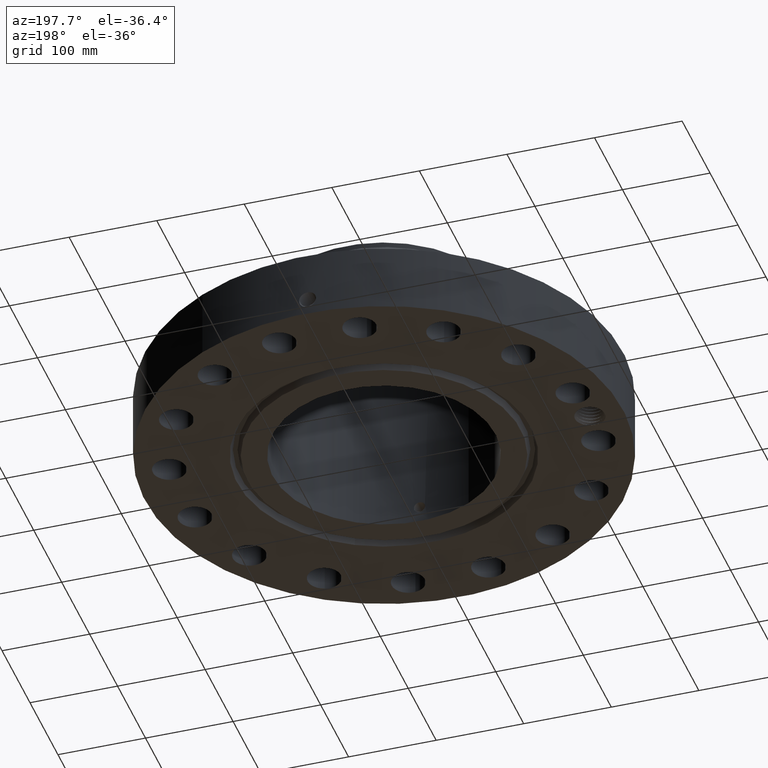
[diagram: clean part render]
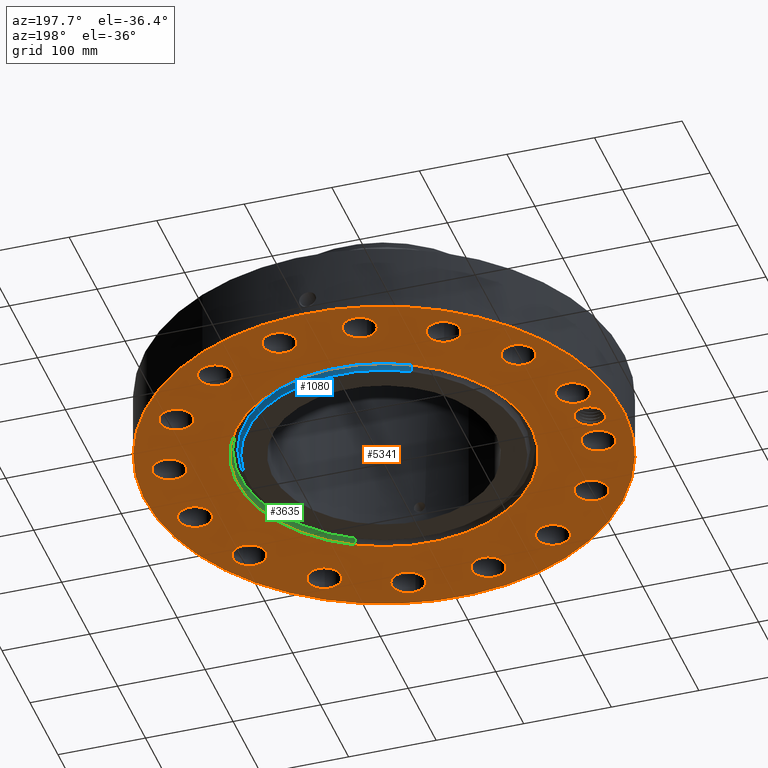
[diagram: same view with three faces highlighted in distinct colors, each labeled with its STEP entity id]
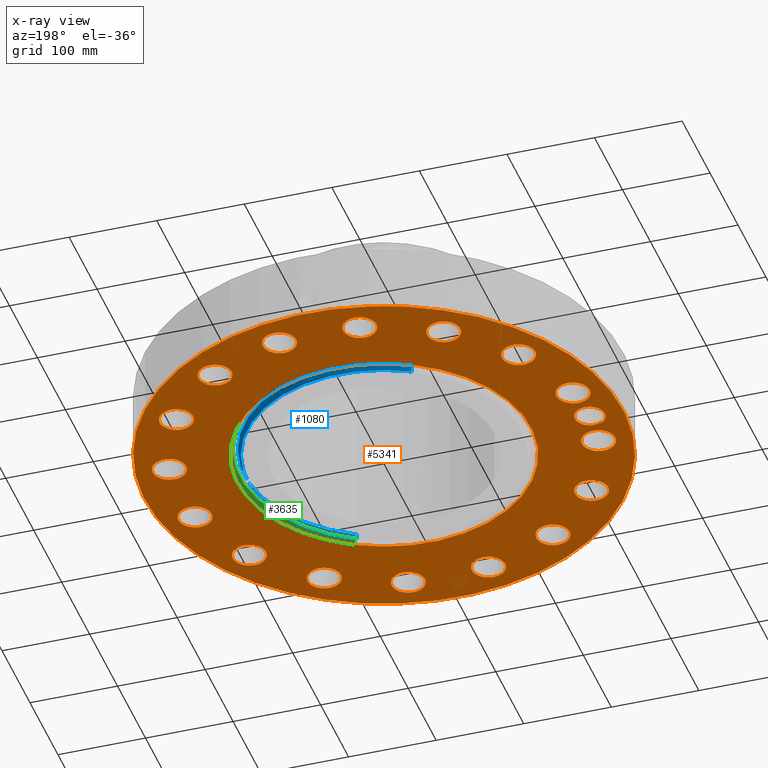
[diagram: x-ray of the same camera — body ghosted, the three highlighted faces saturated]
A machine part, auxiliary view with three faces highlighted in distinct colors.
The next image is the same camera in x-ray (body ghosted, the three faces saturated) — at least one of them is partly hidden behind the body in this view.
Their STEP definitions:

[orange] entity #5341 — the highlighted planar face has unit normal (0, 0, -1).
#598=AXIS2_PLACEMENT_3D('Plane Axis2P3D',#595,#596,#597) ;
#3612=AXIS2_PLACEMENT_3D('Circle Axis2P3D',#3610,#3611,$) ;
#3638=AXIS2_PLACEMENT_3D('Circle Axis2P3D',#3636,#3637,$) ;
#3911=AXIS2_PLACEMENT_3D('Circle Axis2P3D',#3909,#3910,$) ;
#4024=AXIS2_PLACEMENT_3D('Circle Axis2P3D',#4022,#4023,$) ;
#4246=AXIS2_PLACEMENT_3D('Circle Axis2P3D',#4244,#4245,$) ;
#4265=AXIS2_PLACEMENT_3D('Circle Axis2P3D',#4263,#4264,$) ;
#4289=AXIS2_PLACEMENT_3D('Circle Axis2P3D',#4287,#4288,$) ;
#4308=AXIS2_PLACEMENT_3D('Circle Axis2P3D',#4306,#4307,$) ;
#4332=AXIS2_PLACEMENT_3D('Circle Axis2P3D',#4330,#4331,$) ;
#4351=AXIS2_PLACEMENT_3D('Circle Axis2P3D',#4349,#4350,$) ;
#4375=AXIS2_PLACEMENT_3D('Circle Axis2P3D',#4373,#4374,$) ;
#4394=AXIS2_PLACEMENT_3D('Circle Axis2P3D',#4392,#4393,$) ;
#4418=AXIS2_PLACEMENT_3D('Circle Axis2P3D',#4416,#4417,$) ;
#4437=AXIS2_PLACEMENT_3D('Circle Axis2P3D',#4435,#4436,$) ;
#4461=AXIS2_PLACEMENT_3D('Circle Axis2P3D',#4459,#4460,$) ;
#4480=AXIS2_PLACEMENT_3D('Circle Axis2P3D',#4478,#4479,$) ;
#4504=AXIS2_PLACEMENT_3D('Circle Axis2P3D',#4502,#4503,$) ;
#4523=AXIS2_PLACEMENT_3D('Circle Axis2P3D',#4521,#4522,$) ;
#4547=AXIS2_PLACEMENT_3D('Circle Axis2P3D',#4545,#4546,$) ;
#4566=AXIS2_PLACEMENT_3D('Circle Axis2P3D',#4564,#4565,$) ;
#4590=AXIS2_PLACEMENT_3D('Circle Axis2P3D',#4588,#4589,$) ;
#4609=AXIS2_PLACEMENT_3D('Circle Axis2P3D',#4607,#4608,$) ;
#4633=AXIS2_PLACEMENT_3D('Circle Axis2P3D',#4631,#4632,$) ;
#4652=AXIS2_PLACEMENT_3D('Circle Axis2P3D',#4650,#4651,$) ;
#4676=AXIS2_PLACEMENT_3D('Circle Axis2P3D',#4674,#4675,$) ;
#4695=AXIS2_PLACEMENT_3D('Circle Axis2P3D',#4693,#4694,$) ;
#4719=AXIS2_PLACEMENT_3D('Circle Axis2P3D',#4717,#4718,$) ;
#4738=AXIS2_PLACEMENT_3D('Circle Axis2P3D',#4736,#4737,$) ;
#4762=AXIS2_PLACEMENT_3D('Circle Axis2P3D',#4760,#4761,$) ;
#4781=AXIS2_PLACEMENT_3D('Circle Axis2P3D',#4779,#4780,$) ;
#4805=AXIS2_PLACEMENT_3D('Circle Axis2P3D',#4803,#4804,$) ;
#4824=AXIS2_PLACEMENT_3D('Circle Axis2P3D',#4822,#4823,$) ;
#4848=AXIS2_PLACEMENT_3D('Circle Axis2P3D',#4846,#4847,$) ;
#4867=AXIS2_PLACEMENT_3D('Circle Axis2P3D',#4865,#4866,$) ;
#4891=AXIS2_PLACEMENT_3D('Circle Axis2P3D',#4889,#4890,$) ;
#4910=AXIS2_PLACEMENT_3D('Circle Axis2P3D',#4908,#4909,$) ;
#5221=AXIS2_PLACEMENT_3D('Circle Axis2P3D',#5219,#5220,$) ;
#5230=AXIS2_PLACEMENT_3D('Circle Axis2P3D',#5228,#5229,$) ;
#5237=AXIS2_PLACEMENT_3D('Circle Axis2P3D',#5235,#5236,$) ;
#595=CARTESIAN_POINT('Axis2P3D Location',(0.,5.01000000002,0.)) ;
#3610=CARTESIAN_POINT('Axis2P3D Location',(0.,0.,-3.49676543189E-017)) ;
#3614=CARTESIAN_POINT('Vertex',(-3.16876309742,5.80038194284,-3.49676543189E-017)) ;
#3616=CARTESIAN_POINT('Vertex',(3.16876309742,-5.80038194284,-3.49676543189E-017)) ;
#3636=CARTESIAN_POINT('Axis2P3D Location',(0.,0.,-3.49676543189E-017)) ;
#3909=CARTESIAN_POINT('Axis2P3D Location',(0.,0.,1.1189649382E-015)) ;
#3913=CARTESIAN_POINT('Vertex',(-5.15382454002,-9.43401254036,1.1189649382E-015)) ;
#3915=CARTESIAN_POINT('Vertex',(5.15382454002,9.43401254036,1.1189649382E-015)) ;
#4022=CARTESIAN_POINT('Axis2P3D Location',(0.,0.,1.1189649382E-015)) ;
#4241=CARTESIAN_POINT('Vertex',(9.73045076519,-2.16415463261,0.)) ;
#4244=CARTESIAN_POINT('Axis2P3D Location',(9.07226384377,-1.80458547866,0.)) ;
#4248=CARTESIAN_POINT('Vertex',(8.41407692235,-1.4450163247,0.)) ;
#4263=CARTESIAN_POINT('Axis2P3D Location',(9.07226384377,-1.80458547866,0.)) ;
#4284=CARTESIAN_POINT('Vertex',(7.22060964657,-4.55494884336,0.)) ;
#4287=CARTESIAN_POINT('Axis2P3D Location',(7.69109391383,-5.13902465545,0.)) ;
#4291=CARTESIAN_POINT('Vertex',(8.16157818109,-5.72310046754,0.)) ;
#4306=CARTESIAN_POINT('Axis2P3D Location',(7.69109391383,-5.13902465545,0.)) ;
#4327=CARTESIAN_POINT('Vertex',(4.92787000709,-6.97143169134,0.)) ;
#4330=CARTESIAN_POINT('Axis2P3D Location',(5.13902465545,-7.69109391383,0.)) ;
#4334=CARTESIAN_POINT('Vertex',(5.35017930381,-8.41075613632,0.)) ;
#4349=CARTESIAN_POINT('Axis2P3D Location',(5.13902465545,-7.69109391383,0.)) ;
#4370=CARTESIAN_POINT('Vertex',(1.88490683029,-8.32657726049,0.)) ;
#4373=CARTESIAN_POINT('Axis2P3D Location',(1.80458547866,-9.07226384377,0.)) ;
#4377=CARTESIAN_POINT('Vertex',(1.72426412702,-9.81795042704,0.)) ;
#4392=CARTESIAN_POINT('Axis2P3D Location',(1.80458547866,-9.07226384377,0.)) ;
#4413=CARTESIAN_POINT('Vertex',(-1.4450163247,-8.41407692235,0.)) ;
#4416=CARTESIAN_POINT('Axis2P3D Location',(-1.80458547866,-9.07226384377,0.)) ;
#4420=CARTESIAN_POINT('Vertex',(-2.16415463261,-9.73045076519,0.)) ;
#4435=CARTESIAN_POINT('Axis2P3D Location',(-1.80458547866,-9.07226384377,0.)) ;
#4456=CARTESIAN_POINT('Vertex',(-4.55494884336,-7.22060964657,0.)) ;
#4459=CARTESIAN_POINT('Axis2P3D Location',(-5.13902465545,-7.69109391383,0.)) ;
#4463=CARTESIAN_POINT('Vertex',(-5.72310046754,-8.16157818109,0.)) ;
#4478=CARTESIAN_POINT('Axis2P3D Location',(-5.13902465545,-7.69109391383,0.)) ;
#4499=CARTESIAN_POINT('Vertex',(-6.97143169134,-4.92787000709,0.)) ;
#4502=CARTESIAN_POINT('Axis2P3D Location',(-7.69109391383,-5.13902465545,0.)) ;
#4506=CARTESIAN_POINT('Vertex',(-8.41075613632,-5.35017930381,0.)) ;
#4521=CARTESIAN_POINT('Axis2P3D Location',(-7.69109391383,-5.13902465545,0.)) ;
#4542=CARTESIAN_POINT('Vertex',(-8.32657726049,-1.88490683029,0.)) ;
#4545=CARTESIAN_POINT('Axis2P3D Location',(-9.07226384377,-1.80458547866,0.)) ;
#4549=CARTESIAN_POINT('Vertex',(-9.81795042704,-1.72426412702,0.)) ;
#4564=CARTESIAN_POINT('Axis2P3D Location',(-9.07226384377,-1.80458547866,0.)) ;
#4585=CARTESIAN_POINT('Vertex',(-8.41407692235,1.4450163247,0.)) ;
#4588=CARTESIAN_POINT('Axis2P3D Location',(-9.07226384377,1.80458547866,0.)) ;
#4592=CARTESIAN_POINT('Vertex',(-9.73045076519,2.16415463261,0.)) ;
#4607=CARTESIAN_POINT('Axis2P3D Location',(-9.07226384377,1.80458547866,0.)) ;
#4628=CARTESIAN_POINT('Vertex',(-7.22060964657,4.55494884336,0.)) ;
#4631=CARTESIAN_POINT('Axis2P3D Location',(-7.69109391383,5.13902465545,0.)) ;
#4635=CARTESIAN_POINT('Vertex',(-8.16157818109,5.72310046754,0.)) ;
#4650=CARTESIAN_POINT('Axis2P3D Location',(-7.69109391383,5.13902465545,0.)) ;
#4671=CARTESIAN_POINT('Vertex',(-4.92787000709,6.97143169134,0.)) ;
#4674=CARTESIAN_POINT('Axis2P3D Location',(-5.13902465545,7.69109391383,0.)) ;
#4678=CARTESIAN_POINT('Vertex',(-5.35017930381,8.41075613632,0.)) ;
#4693=CARTESIAN_POINT('Axis2P3D Location',(-5.13902465545,7.69109391383,0.)) ;
#4714=CARTESIAN_POINT('Vertex',(-1.88490683029,8.32657726049,0.)) ;
#4717=CARTESIAN_POINT('Axis2P3D Location',(-1.80458547866,9.07226384377,0.)) ;
#4721=CARTESIAN_POINT('Vertex',(-1.72426412702,9.81795042704,0.)) ;
#4736=CARTESIAN_POINT('Axis2P3D Location',(-1.80458547866,9.07226384377,0.)) ;
#4757=CARTESIAN_POINT('Vertex',(1.4450163247,8.41407692235,0.)) ;
#4760=CARTESIAN_POINT('Axis2P3D Location',(1.80458547866,9.07226384377,0.)) ;
#4764=CARTESIAN_POINT('Vertex',(2.16415463261,9.73045076519,0.)) ;
#4779=CARTESIAN_POINT('Axis2P3D Location',(1.80458547866,9.07226384377,0.)) ;
#4800=CARTESIAN_POINT('Vertex',(4.55494884336,7.22060964657,0.)) ;
#4803=CARTESIAN_POINT('Axis2P3D Location',(5.13902465545,7.69109391383,-2.23792987641E-015)) ;
#4807=CARTESIAN_POINT('Vertex',(5.72310046754,8.16157818109,-2.23792987641E-015)) ;
#4822=CARTESIAN_POINT('Axis2P3D Location',(5.13902465545,7.69109391383,-2.23792987641E-015)) ;
#4843=CARTESIAN_POINT('Vertex',(6.97143169134,4.92787000709,0.)) ;
#4846=CARTESIAN_POINT('Axis2P3D Location',(7.69109391383,5.13902465545,0.)) ;
#4850=CARTESIAN_POINT('Vertex',(8.41075613632,5.35017930381,0.)) ;
#4865=CARTESIAN_POINT('Axis2P3D Location',(7.69109391383,5.13902465545,0.)) ;
#4886=CARTESIAN_POINT('Vertex',(8.32657726049,1.88490683029,0.)) ;
#4889=CARTESIAN_POINT('Axis2P3D Location',(9.07226384377,1.80458547866,0.)) ;
#4893=CARTESIAN_POINT('Vertex',(9.81795042704,1.72426412702,0.)) ;
#4908=CARTESIAN_POINT('Axis2P3D Location',(9.07226384377,1.80458547866,0.)) ;
#5219=CARTESIAN_POINT('Axis2P3D Location',(-9.25000000004,2.23792987641E-015,0.)) ;
#5223=CARTESIAN_POINT('Vertex',(-8.66254623311,-0.320927455543,0.)) ;
#5225=CARTESIAN_POINT('Vertex',(-9.26642118393,-0.669198554035,0.)) ;
#5228=CARTESIAN_POINT('Axis2P3D Location',(-9.25000000004,2.23792987641E-015,0.)) ;
#5232=CARTESIAN_POINT('Vertex',(-9.83745376697,0.320927455543,0.)) ;
#5235=CARTESIAN_POINT('Axis2P3D Location',(-9.25000000004,2.23792987641E-015,0.)) ;
#5239=CARTESIAN_POINT('Vertex',(-9.91544654649,-0.0726447094977,0.)) ;
#5243=CARTESIAN_POINT('Control Point',(-9.71532845178,-0.506089292891,0.)) ;
#5244=CARTESIAN_POINT('Control Point',(-9.76120298516,-0.460699456486,0.)) ;
#5245=CARTESIAN_POINT('Control Point',(-9.80165111393,-0.410019209044,0.)) ;
#5246=CARTESIAN_POINT('Control Point',(-9.83584809507,-0.354891065902,0.)) ;
#5247=CARTESIAN_POINT('Control Point',(-9.87739984907,-0.265853909544,0.)) ;
#5248=CARTESIAN_POINT('Control Point',(-9.9021867324,-0.171593047047,0.)) ;
#5249=CARTESIAN_POINT('Control Point',(-9.90866145955,-0.138835763008,0.)) ;
#5250=CARTESIAN_POINT('Control Point',(-9.91308465444,-0.105795730288,0.)) ;
#5251=CARTESIAN_POINT('Control Point',(-9.91544654649,-0.0726447094977,0.)) ;
#5252=CARTESIAN_POINT('Vertex',(-9.71532845178,-0.506089292889,-8.74191357973E-018)) ;
#5256=CARTESIAN_POINT('Control Point',(-9.71532845178,-0.506089292889,0.)) ;
#5257=CARTESIAN_POINT('Control Point',(-9.67443972998,-0.541010292444,0.)) ;
#5258=CARTESIAN_POINT('Control Point',(-9.63020005154,-0.571875084658,0.)) ;
#5259=CARTESIAN_POINT('Control Point',(-9.58313421186,-0.598245643618,0.)) ;
#5260=CARTESIAN_POINT('Control Point',(-9.49312921004,-0.637586114101,0.)) ;
#5261=CARTESIAN_POINT('Control Point',(-9.39799099447,-0.660111324278,0.)) ;
#5262=CARTESIAN_POINT('Control Point',(-9.35426989324,-0.666745490689,0.)) ;
#5263=CARTESIAN_POINT('Control Point',(-9.31028203751,-0.669769481764,0.)) ;
#5264=CARTESIAN_POINT('Control Point',(-9.26642118393,-0.669198554035,0.)) ;
#596=DIRECTION('Axis2P3D Direction',(0.,0.,-0.0393700787402)) ;
#597=DIRECTION('Axis2P3D XDirection',(0.0393700787402,0.,0.)) ;
#3611=DIRECTION('Axis2P3D Direction',(0.,0.,-0.0393700787402)) ;
#3637=DIRECTION('Axis2P3D Direction',(0.,0.,-0.0393700787402)) ;
#3910=DIRECTION('Axis2P3D Direction',(0.,0.,-0.0393700787402)) ;
#4023=DIRECTION('Axis2P3D Direction',(0.,0.,-0.0393700787402)) ;
#4245=DIRECTION('Axis2P3D Direction',(0.,-0.,-0.0393700787402)) ;
#4264=DIRECTION('Axis2P3D Direction',(0.,-0.,-0.0393700787402)) ;
#4288=DIRECTION('Axis2P3D Direction',(0.,-0.,-0.0393700787402)) ;
#4307=DIRECTION('Axis2P3D Direction',(0.,-0.,-0.0393700787402)) ;
#4331=DIRECTION('Axis2P3D Direction',(0.,-0.,-0.0393700787402)) ;
#4350=DIRECTION('Axis2P3D Direction',(0.,-0.,-0.0393700787402)) ;
#4374=DIRECTION('Axis2P3D Direction',(0.,-0.,-0.0393700787402)) ;
#4393=DIRECTION('Axis2P3D Direction',(0.,-0.,-0.0393700787402)) ;
#4417=DIRECTION('Axis2P3D Direction',(0.,-0.,-0.0393700787402)) ;
#4436=DIRECTION('Axis2P3D Direction',(0.,-0.,-0.0393700787402)) ;
#4460=DIRECTION('Axis2P3D Direction',(-0.,0.,-0.0393700787402)) ;
#4479=DIRECTION('Axis2P3D Direction',(-0.,0.,-0.0393700787402)) ;
#4503=DIRECTION('Axis2P3D Direction',(-0.,0.,-0.0393700787402)) ;
#4522=DIRECTION('Axis2P3D Direction',(-0.,0.,-0.0393700787402)) ;
#4546=DIRECTION('Axis2P3D Direction',(-0.,0.,-0.0393700787402)) ;
#4565=DIRECTION('Axis2P3D Direction',(-0.,0.,-0.0393700787402)) ;
#4589=DIRECTION('Axis2P3D Direction',(-0.,0.,-0.0393700787402)) ;
#4608=DIRECTION('Axis2P3D Direction',(-0.,0.,-0.0393700787402)) ;
#4632=DIRECTION('Axis2P3D Direction',(0.,0.,-0.0393700787402)) ;
#4651=DIRECTION('Axis2P3D Direction',(0.,0.,-0.0393700787402)) ;
#4675=DIRECTION('Axis2P3D Direction',(0.,0.,-0.0393700787402)) ;
#4694=DIRECTION('Axis2P3D Direction',(0.,0.,-0.0393700787402)) ;
#4718=DIRECTION('Axis2P3D Direction',(0.,0.,-0.0393700787402)) ;
#4737=DIRECTION('Axis2P3D Direction',(0.,0.,-0.0393700787402)) ;
#4761=DIRECTION('Axis2P3D Direction',(0.,0.,-0.0393700787402)) ;
#4780=DIRECTION('Axis2P3D Direction',(0.,0.,-0.0393700787402)) ;
#4804=DIRECTION('Axis2P3D Direction',(0.,0.,-0.0393700787402)) ;
#4823=DIRECTION('Axis2P3D Direction',(0.,0.,-0.0393700787402)) ;
#4847=DIRECTION('Axis2P3D Direction',(0.,0.,-0.0393700787402)) ;
#4866=DIRECTION('Axis2P3D Direction',(0.,0.,-0.0393700787402)) ;
#4890=DIRECTION('Axis2P3D Direction',(0.,0.,-0.0393700787402)) ;
#4909=DIRECTION('Axis2P3D Direction',(0.,0.,-0.0393700787402)) ;
#5220=DIRECTION('Axis2P3D Direction',(0.,0.,-0.0393700787402)) ;
#5229=DIRECTION('Axis2P3D Direction',(0.,0.,-0.0393700787402)) ;
#5236=DIRECTION('Axis2P3D Direction',(0.,0.,-0.0393700787402)) ;
#5216=ORIENTED_EDGE('',*,*,#3917,.T.) ;
#5217=ORIENTED_EDGE('',*,*,#4026,.T.) ;
#5267=ORIENTED_EDGE('',*,*,#5227,.F.) ;
#5268=ORIENTED_EDGE('',*,*,#5234,.F.) ;
#5269=ORIENTED_EDGE('',*,*,#5241,.F.) ;
#5270=ORIENTED_EDGE('',*,*,#5254,.F.) ;
#5271=ORIENTED_EDGE('',*,*,#5265,.T.) ;
#5274=ORIENTED_EDGE('',*,*,#4250,.F.) ;
#5275=ORIENTED_EDGE('',*,*,#4267,.F.) ;
#5278=ORIENTED_EDGE('',*,*,#4293,.F.) ;
#5279=ORIENTED_EDGE('',*,*,#4310,.F.) ;
#5282=ORIENTED_EDGE('',*,*,#4336,.F.) ;
#5283=ORIENTED_EDGE('',*,*,#4353,.F.) ;
#5286=ORIENTED_EDGE('',*,*,#4379,.F.) ;
#5287=ORIENTED_EDGE('',*,*,#4396,.F.) ;
#5290=ORIENTED_EDGE('',*,*,#4422,.F.) ;
#5291=ORIENTED_EDGE('',*,*,#4439,.F.) ;
#5294=ORIENTED_EDGE('',*,*,#4465,.F.) ;
#5295=ORIENTED_EDGE('',*,*,#4482,.F.) ;
#5298=ORIENTED_EDGE('',*,*,#4508,.F.) ;
#5299=ORIENTED_EDGE('',*,*,#4525,.F.) ;
#5302=ORIENTED_EDGE('',*,*,#4551,.F.) ;
#5303=ORIENTED_EDGE('',*,*,#4568,.F.) ;
#5306=ORIENTED_EDGE('',*,*,#4594,.F.) ;
#5307=ORIENTED_EDGE('',*,*,#4611,.F.) ;
#5310=ORIENTED_EDGE('',*,*,#4637,.F.) ;
#5311=ORIENTED_EDGE('',*,*,#4654,.F.) ;
#5314=ORIENTED_EDGE('',*,*,#4680,.F.) ;
#5315=ORIENTED_EDGE('',*,*,#4697,.F.) ;
#5318=ORIENTED_EDGE('',*,*,#4723,.F.) ;
#5319=ORIENTED_EDGE('',*,*,#4740,.F.) ;
#5322=ORIENTED_EDGE('',*,*,#4766,.F.) ;
#5323=ORIENTED_EDGE('',*,*,#4783,.F.) ;
#5326=ORIENTED_EDGE('',*,*,#4809,.F.) ;
#5327=ORIENTED_EDGE('',*,*,#4826,.F.) ;
#5330=ORIENTED_EDGE('',*,*,#4852,.F.) ;
#5331=ORIENTED_EDGE('',*,*,#4869,.F.) ;
#5334=ORIENTED_EDGE('',*,*,#4895,.F.) ;
#5335=ORIENTED_EDGE('',*,*,#4912,.F.) ;
#5338=ORIENTED_EDGE('',*,*,#3640,.F.) ;
#5339=ORIENTED_EDGE('',*,*,#3618,.F.) ;
#5272=FACE_BOUND('',#5266,.T.) ;
#5276=FACE_BOUND('',#5273,.T.) ;
#5280=FACE_BOUND('',#5277,.T.) ;
#5284=FACE_BOUND('',#5281,.T.) ;
#5288=FACE_BOUND('',#5285,.T.) ;
#5292=FACE_BOUND('',#5289,.T.) ;
#5296=FACE_BOUND('',#5293,.T.) ;
#5300=FACE_BOUND('',#5297,.T.) ;
#5304=FACE_BOUND('',#5301,.T.) ;
#5308=FACE_BOUND('',#5305,.T.) ;
#5312=FACE_BOUND('',#5309,.T.) ;
#5316=FACE_BOUND('',#5313,.T.) ;
#5320=FACE_BOUND('',#5317,.T.) ;
#5324=FACE_BOUND('',#5321,.T.) ;
#5328=FACE_BOUND('',#5325,.T.) ;
#5332=FACE_BOUND('',#5329,.T.) ;
#5336=FACE_BOUND('',#5333,.T.) ;
#5340=FACE_BOUND('',#5337,.T.) ;
#5341=ADVANCED_FACE('PartBody',(#5218,#5272,#5276,#5280,#5284,#5288,#5292,#5296,#5300,#5304,#5308,#5312,#5316,#5320,#5324,#5328,#5332,#5336,#5340),#599,.T.) ;
#5242=B_SPLINE_CURVE_WITH_KNOTS('',5,(#5243,#5244,#5245,#5246,#5247,#5248,#5249,#5250,#5251),.UNSPECIFIED.,.F.,.U.,(6,3,6),(0.,11.2767591996,17.1567524005),.UNSPECIFIED.) ;
#5255=B_SPLINE_CURVE_WITH_KNOTS('',5,(#5256,#5257,#5258,#5259,#5260,#5261,#5262,#5263,#5264),.UNSPECIFIED.,.F.,.U.,(6,3,6),(0.,9.39600649502,17.1633357428),.UNSPECIFIED.) ;
#3613=CIRCLE('generated circle',#3612,6.60950000003) ;
#3639=CIRCLE('generated circle',#3638,6.60950000003) ;
#3912=CIRCLE('generated circle',#3911,10.75) ;
#4025=CIRCLE('generated circle',#4024,10.75) ;
#4247=CIRCLE('generated circle',#4246,0.750000000003) ;
#4266=CIRCLE('generated circle',#4265,0.750000000003) ;
#4290=CIRCLE('generated circle',#4289,0.750000000003) ;
#4309=CIRCLE('generated circle',#4308,0.750000000003) ;
#4333=CIRCLE('generated circle',#4332,0.750000000003) ;
#4352=CIRCLE('generated circle',#4351,0.750000000003) ;
#4376=CIRCLE('generated circle',#4375,0.750000000003) ;
#4395=CIRCLE('generated circle',#4394,0.750000000003) ;
#4419=CIRCLE('generated circle',#4418,0.750000000003) ;
#4438=CIRCLE('generated circle',#4437,0.750000000003) ;
#4462=CIRCLE('generated circle',#4461,0.750000000003) ;
#4481=CIRCLE('generated circle',#4480,0.750000000003) ;
#4505=CIRCLE('generated circle',#4504,0.750000000003) ;
#4524=CIRCLE('generated circle',#4523,0.750000000003) ;
#4548=CIRCLE('generated circle',#4547,0.750000000003) ;
#4567=CIRCLE('generated circle',#4566,0.750000000003) ;
#4591=CIRCLE('generated circle',#4590,0.750000000003) ;
#4610=CIRCLE('generated circle',#4609,0.750000000003) ;
#4634=CIRCLE('generated circle',#4633,0.750000000003) ;
#4653=CIRCLE('generated circle',#4652,0.750000000003) ;
#4677=CIRCLE('generated circle',#4676,0.750000000003) ;
#4696=CIRCLE('generated circle',#4695,0.750000000003) ;
#4720=CIRCLE('generated circle',#4719,0.750000000003) ;
#4739=CIRCLE('generated circle',#4738,0.750000000003) ;
#4763=CIRCLE('generated circle',#4762,0.750000000003) ;
#4782=CIRCLE('generated circle',#4781,0.750000000003) ;
#4806=CIRCLE('generated circle',#4805,0.750000000003) ;
#4825=CIRCLE('generated circle',#4824,0.750000000003) ;
#4849=CIRCLE('generated circle',#4848,0.750000000003) ;
#4868=CIRCLE('generated circle',#4867,0.750000000003) ;
#4892=CIRCLE('generated circle',#4891,0.750000000003) ;
#4911=CIRCLE('generated circle',#4910,0.750000000003) ;
#5222=CIRCLE('generated circle',#5221,0.669400000003) ;
#5231=CIRCLE('generated circle',#5230,0.669400000003) ;
#5238=CIRCLE('generated circle',#5237,0.669400000003) ;
#3618=EDGE_CURVE('',#3615,#3617,#3613,.T.) ;
#3640=EDGE_CURVE('',#3617,#3615,#3639,.T.) ;
#3917=EDGE_CURVE('',#3914,#3916,#3912,.T.) ;
#4026=EDGE_CURVE('',#3916,#3914,#4025,.T.) ;
#4250=EDGE_CURVE('',#4242,#4249,#4247,.T.) ;
#4267=EDGE_CURVE('',#4249,#4242,#4266,.T.) ;
#4293=EDGE_CURVE('',#4285,#4292,#4290,.T.) ;
#4310=EDGE_CURVE('',#4292,#4285,#4309,.T.) ;
#4336=EDGE_CURVE('',#4328,#4335,#4333,.T.) ;
#4353=EDGE_CURVE('',#4335,#4328,#4352,.T.) ;
#4379=EDGE_CURVE('',#4371,#4378,#4376,.T.) ;
#4396=EDGE_CURVE('',#4378,#4371,#4395,.T.) ;
#4422=EDGE_CURVE('',#4414,#4421,#4419,.T.) ;
#4439=EDGE_CURVE('',#4421,#4414,#4438,.T.) ;
#4465=EDGE_CURVE('',#4457,#4464,#4462,.T.) ;
#4482=EDGE_CURVE('',#4464,#4457,#4481,.T.) ;
#4508=EDGE_CURVE('',#4500,#4507,#4505,.T.) ;
#4525=EDGE_CURVE('',#4507,#4500,#4524,.T.) ;
#4551=EDGE_CURVE('',#4543,#4550,#4548,.T.) ;
#4568=EDGE_CURVE('',#4550,#4543,#4567,.T.) ;
#4594=EDGE_CURVE('',#4586,#4593,#4591,.T.) ;
#4611=EDGE_CURVE('',#4593,#4586,#4610,.T.) ;
#4637=EDGE_CURVE('',#4629,#4636,#4634,.T.) ;
#4654=EDGE_CURVE('',#4636,#4629,#4653,.T.) ;
#4680=EDGE_CURVE('',#4672,#4679,#4677,.T.) ;
#4697=EDGE_CURVE('',#4679,#4672,#4696,.T.) ;
#4723=EDGE_CURVE('',#4715,#4722,#4720,.T.) ;
#4740=EDGE_CURVE('',#4722,#4715,#4739,.T.) ;
#4766=EDGE_CURVE('',#4758,#4765,#4763,.T.) ;
#4783=EDGE_CURVE('',#4765,#4758,#4782,.T.) ;
#4809=EDGE_CURVE('',#4801,#4808,#4806,.T.) ;
#4826=EDGE_CURVE('',#4808,#4801,#4825,.T.) ;
#4852=EDGE_CURVE('',#4844,#4851,#4849,.T.) ;
#4869=EDGE_CURVE('',#4851,#4844,#4868,.T.) ;
#4895=EDGE_CURVE('',#4887,#4894,#4892,.T.) ;
#4912=EDGE_CURVE('',#4894,#4887,#4911,.T.) ;
#5227=EDGE_CURVE('',#5224,#5226,#5222,.T.) ;
#5234=EDGE_CURVE('',#5233,#5224,#5231,.T.) ;
#5241=EDGE_CURVE('',#5240,#5233,#5238,.T.) ;
#5254=EDGE_CURVE('',#5253,#5240,#5242,.T.) ;
#5265=EDGE_CURVE('',#5253,#5226,#5255,.T.) ;
#5215=EDGE_LOOP('',(#5216,#5217)) ;
#5266=EDGE_LOOP('',(#5267,#5268,#5269,#5270,#5271)) ;
#5273=EDGE_LOOP('',(#5274,#5275)) ;
#5277=EDGE_LOOP('',(#5278,#5279)) ;
#5281=EDGE_LOOP('',(#5282,#5283)) ;
#5285=EDGE_LOOP('',(#5286,#5287)) ;
#5289=EDGE_LOOP('',(#5290,#5291)) ;
#5293=EDGE_LOOP('',(#5294,#5295)) ;
#5297=EDGE_LOOP('',(#5298,#5299)) ;
#5301=EDGE_LOOP('',(#5302,#5303)) ;
#5305=EDGE_LOOP('',(#5306,#5307)) ;
#5309=EDGE_LOOP('',(#5310,#5311)) ;
#5313=EDGE_LOOP('',(#5314,#5315)) ;
#5317=EDGE_LOOP('',(#5318,#5319)) ;
#5321=EDGE_LOOP('',(#5322,#5323)) ;
#5325=EDGE_LOOP('',(#5326,#5327)) ;
#5329=EDGE_LOOP('',(#5330,#5331)) ;
#5333=EDGE_LOOP('',(#5334,#5335)) ;
#5337=EDGE_LOOP('',(#5338,#5339)) ;
#5218=FACE_OUTER_BOUND('',#5215,.T.) ;
#599=PLANE('',#598) ;
#3615=VERTEX_POINT('',#3614) ;
#3617=VERTEX_POINT('',#3616) ;
#3914=VERTEX_POINT('',#3913) ;
#3916=VERTEX_POINT('',#3915) ;
#4242=VERTEX_POINT('',#4241) ;
#4249=VERTEX_POINT('',#4248) ;
#4285=VERTEX_POINT('',#4284) ;
#4292=VERTEX_POINT('',#4291) ;
#4328=VERTEX_POINT('',#4327) ;
#4335=VERTEX_POINT('',#4334) ;
#4371=VERTEX_POINT('',#4370) ;
#4378=VERTEX_POINT('',#4377) ;
#4414=VERTEX_POINT('',#4413) ;
#4421=VERTEX_POINT('',#4420) ;
#4457=VERTEX_POINT('',#4456) ;
#4464=VERTEX_POINT('',#4463) ;
#4500=VERTEX_POINT('',#4499) ;
#4507=VERTEX_POINT('',#4506) ;
#4543=VERTEX_POINT('',#4542) ;
#4550=VERTEX_POINT('',#4549) ;
#4586=VERTEX_POINT('',#4585) ;
#4593=VERTEX_POINT('',#4592) ;
#4629=VERTEX_POINT('',#4628) ;
#4636=VERTEX_POINT('',#4635) ;
#4672=VERTEX_POINT('',#4671) ;
#4679=VERTEX_POINT('',#4678) ;
#4715=VERTEX_POINT('',#4714) ;
#4722=VERTEX_POINT('',#4721) ;
#4758=VERTEX_POINT('',#4757) ;
#4765=VERTEX_POINT('',#4764) ;
#4801=VERTEX_POINT('',#4800) ;
#4808=VERTEX_POINT('',#4807) ;
#4844=VERTEX_POINT('',#4843) ;
#4851=VERTEX_POINT('',#4850) ;
#4887=VERTEX_POINT('',#4886) ;
#4894=VERTEX_POINT('',#4893) ;
#5224=VERTEX_POINT('',#5223) ;
#5226=VERTEX_POINT('',#5225) ;
#5233=VERTEX_POINT('',#5232) ;
#5240=VERTEX_POINT('',#5239) ;
#5253=VERTEX_POINT('',#5252) ;

[blue] entity #1080 — the highlighted conical surface has half-angle 23 deg.
#602=AXIS2_PLACEMENT_3D('Circle Axis2P3D',#600,#601,$) ;
#1053=AXIS2_PLACEMENT_3D('Cone Axis2P3D',#1050,#1051,#1052) ;
#1064=AXIS2_PLACEMENT_3D('Circle Axis2P3D',#1062,#1063,$) ;
#600=CARTESIAN_POINT('Axis2P3D Location',(5.59482469102E-016,0.,0.)) ;
#604=CARTESIAN_POINT('Vertex',(-2.94391251981,5.38879572131,0.)) ;
#606=CARTESIAN_POINT('Vertex',(2.94391251981,-5.38879572131,0.)) ;
#1050=CARTESIAN_POINT('Axis2P3D Location',(0.,0.,-0.0600000000002)) ;
#1055=CARTESIAN_POINT('Line Origine',(-2.97379932392,5.44350314927,0.146860966928)) ;
#1059=CARTESIAN_POINT('Vertex',(-3.00368612803,5.49821057724,0.293721933856)) ;
#1062=CARTESIAN_POINT('Axis2P3D Location',(0.,0.,0.293721933856)) ;
#1066=CARTESIAN_POINT('Vertex',(3.00368612803,-5.49821057724,0.293721933856)) ;
#1069=CARTESIAN_POINT('Line Origine',(2.97379932392,-5.44350314927,0.146860966928)) ;
#601=DIRECTION('Axis2P3D Direction',(0.,0.,-0.0393700787402)) ;
#1051=DIRECTION('Axis2P3D Direction',(0.,0.,0.0393700787402)) ;
#1052=DIRECTION('Axis2P3D XDirection',(-0.0188750212049,0.0345504945626,0.)) ;
#1056=DIRECTION('Vector Direction',(-0.00737505833565,0.0134999537303,0.0362403485611)) ;
#1063=DIRECTION('Axis2P3D Direction',(0.,0.,0.0393700787402)) ;
#1070=DIRECTION('Vector Direction',(0.00737505833565,-0.0134999537303,0.0362403485611)) ;
#1057=VECTOR('Line Direction',#1056,0.0393700787402) ;
#1071=VECTOR('Line Direction',#1070,0.0393700787402) ;
#1075=ORIENTED_EDGE('',*,*,#1061,.F.) ;
#1076=ORIENTED_EDGE('',*,*,#1068,.F.) ;
#1077=ORIENTED_EDGE('',*,*,#1073,.T.) ;
#1078=ORIENTED_EDGE('',*,*,#608,.F.) ;
#1080=ADVANCED_FACE('PartBody',(#1079),#1054,.T.) ;
#603=CIRCLE('generated circle',#602,6.14050000002) ;
#1065=CIRCLE('generated circle',#1064,6.26517756391) ;
#1054=CONICAL_SURFACE('Cone',#1053,6.11503151105,0.401425727959) ;
#608=EDGE_CURVE('',#605,#607,#603,.T.) ;
#1061=EDGE_CURVE('',#1060,#605,#1058,.F.) ;
#1068=EDGE_CURVE('',#1067,#1060,#1065,.T.) ;
#1073=EDGE_CURVE('',#1067,#607,#1072,.F.) ;
#1074=EDGE_LOOP('',(#1075,#1076,#1077,#1078)) ;
#1079=FACE_OUTER_BOUND('',#1074,.T.) ;
#1058=LINE('Line',#1055,#1057) ;
#1072=LINE('Line',#1069,#1071) ;
#605=VERTEX_POINT('',#604) ;
#607=VERTEX_POINT('',#606) ;
#1060=VERTEX_POINT('',#1059) ;
#1067=VERTEX_POINT('',#1066) ;

[green] entity #3635 — the highlighted conical surface has half-angle 23 deg.
#2609=AXIS2_PLACEMENT_3D('Circle Axis2P3D',#2607,#2608,$) ;
#3608=AXIS2_PLACEMENT_3D('Cone Axis2P3D',#3605,#3606,#3607) ;
#3612=AXIS2_PLACEMENT_3D('Circle Axis2P3D',#3610,#3611,$) ;
#2607=CARTESIAN_POINT('Axis2P3D Location',(0.,0.,0.293721933856)) ;
#2611=CARTESIAN_POINT('Vertex',(3.1089894892,-5.69096708691,0.293721933856)) ;
#2613=CARTESIAN_POINT('Vertex',(-3.1089894892,5.69096708691,0.293721933856)) ;
#3605=CARTESIAN_POINT('Axis2P3D Location',(0.,0.,0.293721933856)) ;
#3610=CARTESIAN_POINT('Axis2P3D Location',(0.,0.,-3.49676543189E-017)) ;
#3614=CARTESIAN_POINT('Vertex',(-3.16876309742,5.80038194284,-3.49676543189E-017)) ;
#3616=CARTESIAN_POINT('Vertex',(3.16876309742,-5.80038194284,-3.49676543189E-017)) ;
#3619=CARTESIAN_POINT('Line Origine',(3.13887629331,-5.74567451487,0.146860966928)) ;
#3624=CARTESIAN_POINT('Line Origine',(-3.13887629331,5.74567451487,0.146860966928)) ;
#2608=DIRECTION('Axis2P3D Direction',(0.,0.,0.0393700787402)) ;
#3606=DIRECTION('Axis2P3D Direction',(-0.,-0.,-0.0393700787402)) ;
#3607=DIRECTION('Axis2P3D XDirection',(0.0188750212049,-0.0345504945626,0.)) ;
#3611=DIRECTION('Axis2P3D Direction',(0.,0.,-0.0393700787402)) ;
#3620=DIRECTION('Vector Direction',(0.00737505833565,-0.0134999537303,-0.0362403485611)) ;
#3625=DIRECTION('Vector Direction',(-0.00737505833565,0.0134999537303,-0.0362403485611)) ;
#3621=VECTOR('Line Direction',#3620,0.0393700787402) ;
#3626=VECTOR('Line Direction',#3625,0.0393700787402) ;
#3630=ORIENTED_EDGE('',*,*,#3618,.T.) ;
#3631=ORIENTED_EDGE('',*,*,#3623,.T.) ;
#3632=ORIENTED_EDGE('',*,*,#2615,.T.) ;
#3633=ORIENTED_EDGE('',*,*,#3628,.F.) ;
#3635=ADVANCED_FACE('PartBody',(#3634),#3609,.F.) ;
#2610=CIRCLE('generated circle',#2609,6.48482243614) ;
#3613=CIRCLE('generated circle',#3612,6.60950000003) ;
#3609=CONICAL_SURFACE('Cone',#3608,6.48482243614,0.401425727959) ;
#2615=EDGE_CURVE('',#2612,#2614,#2610,.T.) ;
#3618=EDGE_CURVE('',#3615,#3617,#3613,.T.) ;
#3623=EDGE_CURVE('',#3617,#2612,#3622,.F.) ;
#3628=EDGE_CURVE('',#3615,#2614,#3627,.F.) ;
#3629=EDGE_LOOP('',(#3630,#3631,#3632,#3633)) ;
#3634=FACE_OUTER_BOUND('',#3629,.T.) ;
#3622=LINE('Line',#3619,#3621) ;
#3627=LINE('Line',#3624,#3626) ;
#2612=VERTEX_POINT('',#2611) ;
#2614=VERTEX_POINT('',#2613) ;
#3615=VERTEX_POINT('',#3614) ;
#3617=VERTEX_POINT('',#3616) ;